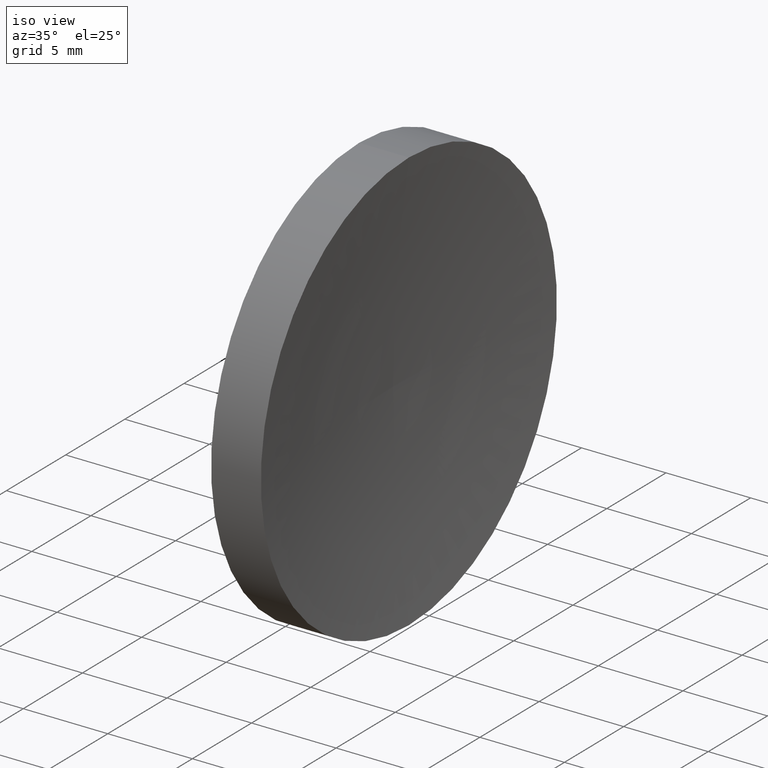
[diagram: clean part render]
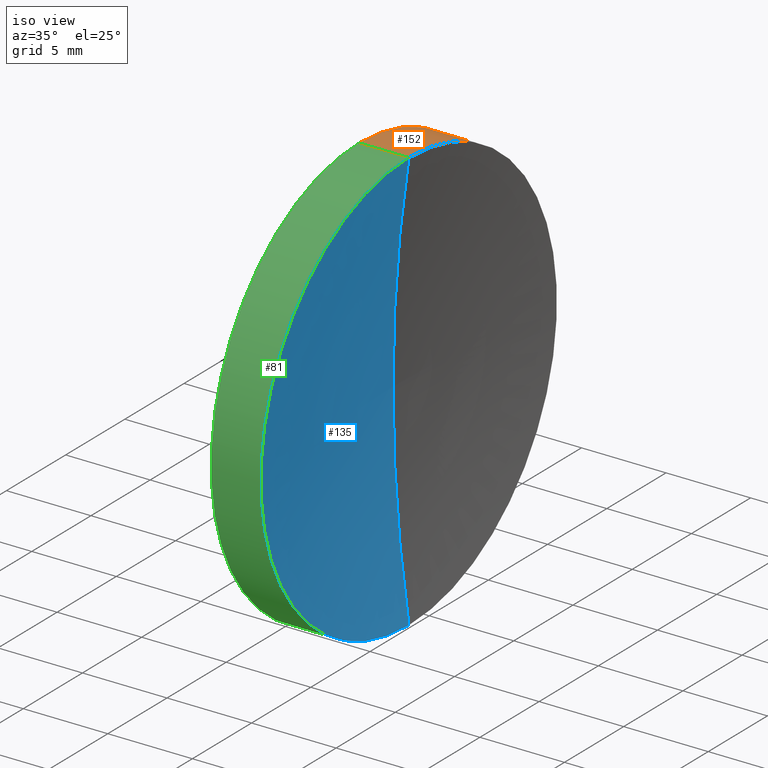
[diagram: same view with three faces highlighted in distinct colors, each labeled with its STEP entity id]
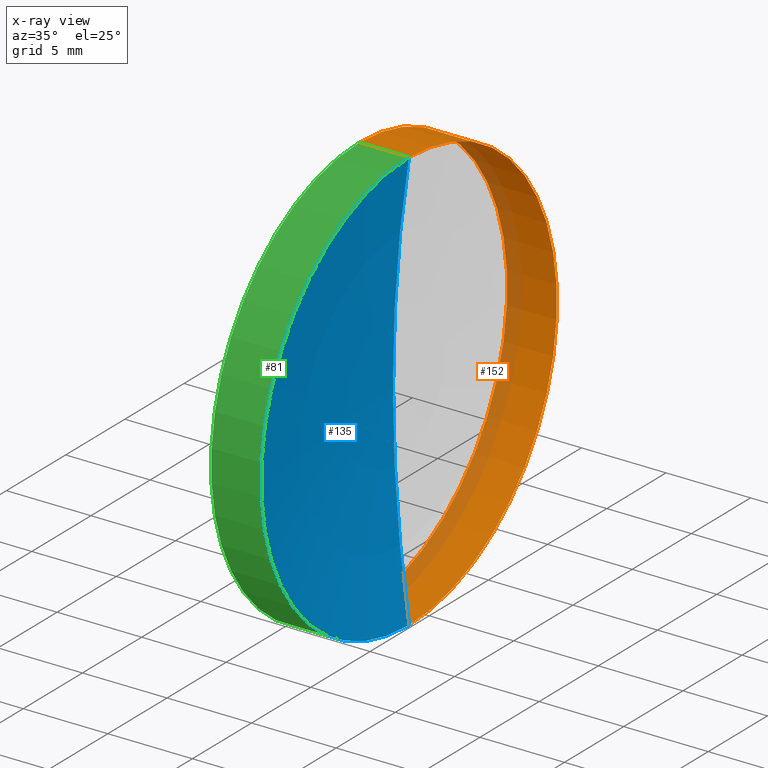
[diagram: x-ray of the same camera — body ghosted, the three highlighted faces saturated]
A machine part, iso view with three faces highlighted in distinct colors.
The next image is the same camera in x-ray (body ghosted, the three faces saturated) — at least one of them is partly hidden behind the body in this view.
Their STEP definitions:

[orange] entity #152 — the highlighted cylindrical surface (partial cylindrical patch) has radius 12.5 mm, axis along (-1, -0, -0).
#6 = EDGE_CURVE ( 'NONE', #46, #90, #107, .T. ) ;
#7 = DIRECTION ( 'NONE',  ( -1.000000000000000000, -0.0000000000000000000, -0.0000000000000000000 ) ) ;
#9 = DIRECTION ( 'NONE',  ( -1.000000000000000000, -0.0000000000000000000, -0.0000000000000000000 ) ) ;
#12 = DIRECTION ( 'NONE',  ( 0.0000000000000000000, 0.0000000000000000000, 1.000000000000000000 ) ) ;
#18 = LINE ( 'NONE', #137, #149 ) ;
#25 = DIRECTION ( 'NONE',  ( -1.000000000000000000, -0.0000000000000000000, -0.0000000000000000000 ) ) ;
#26 = CARTESIAN_POINT ( 'NONE',  ( 56.10091507999716500, 32.61076812922678400, 0.0000000000000000000 ) ) ;
#33 = CARTESIAN_POINT ( 'NONE',  ( 56.10091507999716500, 32.61076812922678400, -12.49999999999999600 ) ) ;
#38 = CARTESIAN_POINT ( 'NONE',  ( 60.47137337464728500, 32.61076812922678400, 0.0000000000000000000 ) ) ;
#42 = CARTESIAN_POINT ( 'NONE',  ( 57.53233705252611700, 32.61076812922678400, -12.49999999999999600 ) ) ;
#44 = CARTESIAN_POINT ( 'NONE',  ( 57.53233705252611700, 32.61076812922678400, 0.0000000000000000000 ) ) ;
#46 = VERTEX_POINT ( 'NONE', #63 ) ;
#48 = CIRCLE ( 'NONE', #132, 12.49999999999999600 ) ;
#52 = CARTESIAN_POINT ( 'NONE',  ( 57.53233705252611700, 32.61076812922678400, 12.49999999999999600 ) ) ;
#58 = CYLINDRICAL_SURFACE ( 'NONE', #162, 12.49999999999999600 ) ;
#60 = EDGE_CURVE ( 'NONE', #163, #46, #65, .T. ) ;
#63 = CARTESIAN_POINT ( 'NONE',  ( 60.47137337464727800, 32.61076812922678400, -12.50000000000000400 ) ) ;
#64 = EDGE_CURVE ( 'NONE', #163, #106, #18, .T. ) ;
#65 = CIRCLE ( 'NONE', #134, 12.49999999999999600 ) ;
#66 = CARTESIAN_POINT ( 'NONE',  ( 60.47137337464727800, 32.61076812922678400, 12.50000000000000400 ) ) ;
#69 = DIRECTION ( 'NONE',  ( 0.0000000000000000000, 0.0000000000000000000, 1.000000000000000000 ) ) ;
#77 = VECTOR ( 'NONE', #7, 1000.000000000000000 ) ;
#85 = DIRECTION ( 'NONE',  ( -1.000000000000000000, -0.0000000000000000000, -0.0000000000000000000 ) ) ;
#90 = VERTEX_POINT ( 'NONE', #42 ) ;
#92 = FACE_OUTER_BOUND ( 'NONE', #115, .T. ) ;
#106 = VERTEX_POINT ( 'NONE', #52 ) ;
#107 = LINE ( 'NONE', #33, #77 ) ;
#110 = ORIENTED_EDGE ( 'NONE', *, *, #160, .F. ) ;
#113 = DIRECTION ( 'NONE',  ( 0.0000000000000000000, 0.0000000000000000000, 1.000000000000000000 ) ) ;
#115 = EDGE_LOOP ( 'NONE', ( #129, #118, #110, #120 ) ) ;
#118 = ORIENTED_EDGE ( 'NONE', *, *, #6, .T. ) ;
#120 = ORIENTED_EDGE ( 'NONE', *, *, #64, .F. ) ;
#129 = ORIENTED_EDGE ( 'NONE', *, *, #60, .T. ) ;
#132 = AXIS2_PLACEMENT_3D ( 'NONE', #44, #85, #12 ) ;
#134 = AXIS2_PLACEMENT_3D ( 'NONE', #38, #25, #113 ) ;
#137 = CARTESIAN_POINT ( 'NONE',  ( 56.10091507999716500, 32.61076812922678400, 12.49999999999999600 ) ) ;
#147 = DIRECTION ( 'NONE',  ( -1.000000000000000000, -0.0000000000000000000, -0.0000000000000000000 ) ) ;
#149 = VECTOR ( 'NONE', #9, 1000.000000000000000 ) ;
#152 = ADVANCED_FACE ( 'NONE', ( #92 ), #58, .T. ) ;
#160 = EDGE_CURVE ( 'NONE', #106, #90, #48, .T. ) ;
#162 = AXIS2_PLACEMENT_3D ( 'NONE', #26, #147, #69 ) ;
#163 = VERTEX_POINT ( 'NONE', #66 ) ;

[blue] entity #135 — the highlighted toroidal blend (fillet) surface has major radius 0.0786 mm and minor (blend) radius 82.62 mm.
#1 = DIRECTION ( 'NONE',  ( 0.0000000000000000000, 0.0000000000000000000, -1.000000000000000000 ) ) ;
#2 = CIRCLE ( 'NONE', #104, 12.49999999999999600 ) ;
#16 = DIRECTION ( 'NONE',  ( -1.000000000000000000, -0.0000000000000000000, -0.0000000000000000000 ) ) ;
#17 = EDGE_LOOP ( 'NONE', ( #71, #150, #112 ) ) ;
#31 = EDGE_CURVE ( 'NONE', #46, #163, #2, .T. ) ;
#34 = CARTESIAN_POINT ( 'NONE',  ( 142.1522996457801800, 32.61076812922678400, -0.07861990398175949800 ) ) ;
#40 = DIRECTION ( 'NONE',  ( 0.0000000000000000000, -1.000000000000000000, 0.0000000000000000000 ) ) ;
#41 = AXIS2_PLACEMENT_3D ( 'NONE', #117, #40, #1 ) ;
#45 = EDGE_CURVE ( 'NONE', #46, #141, #157, .T. ) ;
#46 = VERTEX_POINT ( 'NONE', #63 ) ;
#49 = DIRECTION ( 'NONE',  ( -0.0000000000000000000, 1.000000000000000000, 1.224646799147353200E-016 ) ) ;
#61 = DIRECTION ( 'NONE',  ( -1.000000000000000000, -0.0000000000000000000, -0.0000000000000000000 ) ) ;
#63 = CARTESIAN_POINT ( 'NONE',  ( 60.47137337464727800, 32.61076812922678400, -12.50000000000000400 ) ) ;
#66 = CARTESIAN_POINT ( 'NONE',  ( 60.47137337464727800, 32.61076812922678400, 12.50000000000000400 ) ) ;
#67 = AXIS2_PLACEMENT_3D ( 'NONE', #34, #49, #73 ) ;
#68 = CARTESIAN_POINT ( 'NONE',  ( 59.53233705252608800, 32.61076812922678400, 0.0000000000000000000 ) ) ;
#71 = ORIENTED_EDGE ( 'NONE', *, *, #31, .F. ) ;
#72 = EDGE_CURVE ( 'NONE', #163, #141, #164, .T. ) ;
#73 = DIRECTION ( 'NONE',  ( 0.0000000000000000000, -8.398564395917726000E-017, 1.000000000000000000 ) ) ;
#89 = TOROIDAL_SURFACE ( 'NONE', #121, 0.07861990398175949800, 82.62000000000003300 ) ;
#104 = AXIS2_PLACEMENT_3D ( 'NONE', #138, #61, #153 ) ;
#112 = ORIENTED_EDGE ( 'NONE', *, *, #72, .F. ) ;
#117 = CARTESIAN_POINT ( 'NONE',  ( 142.1522996457801800, 32.61076812922678400, 0.07861990398175949800 ) ) ;
#121 = AXIS2_PLACEMENT_3D ( 'NONE', #161, #16, #131 ) ;
#131 = DIRECTION ( 'NONE',  ( 0.0000000000000000000, 0.0000000000000000000, 1.000000000000000000 ) ) ;
#135 = ADVANCED_FACE ( 'NONE', ( #155 ), #89, .F. ) ;
#138 = CARTESIAN_POINT ( 'NONE',  ( 60.47137337464728500, 32.61076812922678400, 0.0000000000000000000 ) ) ;
#141 = VERTEX_POINT ( 'NONE', #68 ) ;
#150 = ORIENTED_EDGE ( 'NONE', *, *, #45, .T. ) ;
#153 = DIRECTION ( 'NONE',  ( 0.0000000000000000000, 0.0000000000000000000, 1.000000000000000000 ) ) ;
#155 = FACE_OUTER_BOUND ( 'NONE', #17, .T. ) ;
#157 = CIRCLE ( 'NONE', #67, 82.62000000000003300 ) ;
#161 = CARTESIAN_POINT ( 'NONE',  ( 142.1522996457801800, 32.61076812922678400, 0.0000000000000000000 ) ) ;
#163 = VERTEX_POINT ( 'NONE', #66 ) ;
#164 = CIRCLE ( 'NONE', #41, 82.62000000000003300 ) ;

[green] entity #81 — the highlighted cylindrical surface (partial cylindrical patch) has radius 12.5 mm, axis along (-1, -0, -0).
#2 = CIRCLE ( 'NONE', #104, 12.49999999999999600 ) ;
#6 = EDGE_CURVE ( 'NONE', #46, #90, #107, .T. ) ;
#7 = DIRECTION ( 'NONE',  ( -1.000000000000000000, -0.0000000000000000000, -0.0000000000000000000 ) ) ;
#9 = DIRECTION ( 'NONE',  ( -1.000000000000000000, -0.0000000000000000000, -0.0000000000000000000 ) ) ;
#10 = ORIENTED_EDGE ( 'NONE', *, *, #64, .T. ) ;
#18 = LINE ( 'NONE', #137, #149 ) ;
#22 = DIRECTION ( 'NONE',  ( -1.000000000000000000, -0.0000000000000000000, -0.0000000000000000000 ) ) ;
#23 = ORIENTED_EDGE ( 'NONE', *, *, #6, .F. ) ;
#28 = DIRECTION ( 'NONE',  ( -1.000000000000000000, -0.0000000000000000000, -0.0000000000000000000 ) ) ;
#29 = FACE_OUTER_BOUND ( 'NONE', #53, .T. ) ;
#31 = EDGE_CURVE ( 'NONE', #46, #163, #2, .T. ) ;
#33 = CARTESIAN_POINT ( 'NONE',  ( 56.10091507999716500, 32.61076812922678400, -12.49999999999999600 ) ) ;
#42 = CARTESIAN_POINT ( 'NONE',  ( 57.53233705252611700, 32.61076812922678400, -12.49999999999999600 ) ) ;
#46 = VERTEX_POINT ( 'NONE', #63 ) ;
#50 = ORIENTED_EDGE ( 'NONE', *, *, #31, .T. ) ;
#51 = EDGE_CURVE ( 'NONE', #90, #106, #95, .T. ) ;
#52 = CARTESIAN_POINT ( 'NONE',  ( 57.53233705252611700, 32.61076812922678400, 12.49999999999999600 ) ) ;
#53 = EDGE_LOOP ( 'NONE', ( #23, #50, #10, #101 ) ) ;
#55 = CARTESIAN_POINT ( 'NONE',  ( 56.10091507999716500, 32.61076812922678400, 0.0000000000000000000 ) ) ;
#61 = DIRECTION ( 'NONE',  ( -1.000000000000000000, -0.0000000000000000000, -0.0000000000000000000 ) ) ;
#63 = CARTESIAN_POINT ( 'NONE',  ( 60.47137337464727800, 32.61076812922678400, -12.50000000000000400 ) ) ;
#64 = EDGE_CURVE ( 'NONE', #163, #106, #18, .T. ) ;
#66 = CARTESIAN_POINT ( 'NONE',  ( 60.47137337464727800, 32.61076812922678400, 12.50000000000000400 ) ) ;
#77 = VECTOR ( 'NONE', #7, 1000.000000000000000 ) ;
#81 = ADVANCED_FACE ( 'NONE', ( #29 ), #133, .T. ) ;
#90 = VERTEX_POINT ( 'NONE', #42 ) ;
#95 = CIRCLE ( 'NONE', #124, 12.49999999999999600 ) ;
#99 = AXIS2_PLACEMENT_3D ( 'NONE', #55, #28, #146 ) ;
#101 = ORIENTED_EDGE ( 'NONE', *, *, #51, .F. ) ;
#104 = AXIS2_PLACEMENT_3D ( 'NONE', #138, #61, #153 ) ;
#106 = VERTEX_POINT ( 'NONE', #52 ) ;
#107 = LINE ( 'NONE', #33, #77 ) ;
#123 = DIRECTION ( 'NONE',  ( 0.0000000000000000000, 0.0000000000000000000, 1.000000000000000000 ) ) ;
#124 = AXIS2_PLACEMENT_3D ( 'NONE', #154, #22, #123 ) ;
#133 = CYLINDRICAL_SURFACE ( 'NONE', #99, 12.49999999999999600 ) ;
#137 = CARTESIAN_POINT ( 'NONE',  ( 56.10091507999716500, 32.61076812922678400, 12.49999999999999600 ) ) ;
#138 = CARTESIAN_POINT ( 'NONE',  ( 60.47137337464728500, 32.61076812922678400, 0.0000000000000000000 ) ) ;
#146 = DIRECTION ( 'NONE',  ( 0.0000000000000000000, 0.0000000000000000000, 1.000000000000000000 ) ) ;
#149 = VECTOR ( 'NONE', #9, 1000.000000000000000 ) ;
#153 = DIRECTION ( 'NONE',  ( 0.0000000000000000000, 0.0000000000000000000, 1.000000000000000000 ) ) ;
#154 = CARTESIAN_POINT ( 'NONE',  ( 57.53233705252611700, 32.61076812922678400, 0.0000000000000000000 ) ) ;
#163 = VERTEX_POINT ( 'NONE', #66 ) ;